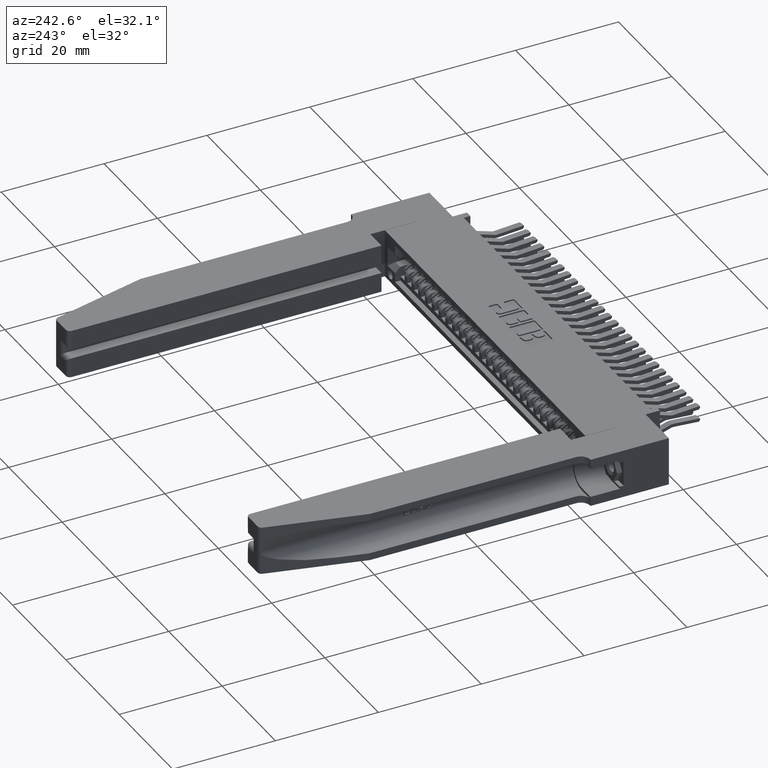
[diagram: clean part render]
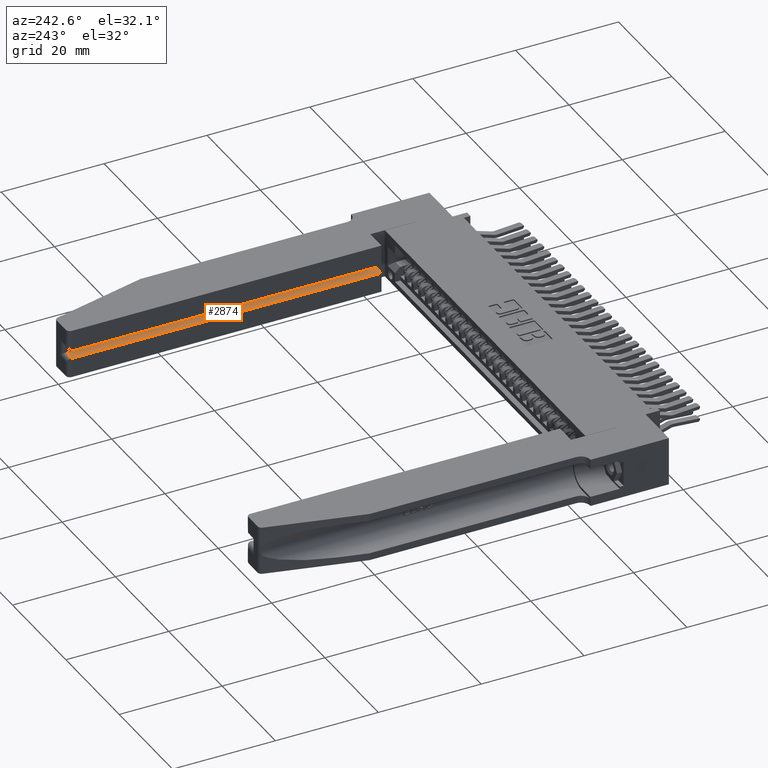
[diagram: same view with one face highlighted and labeled with its STEP entity id]
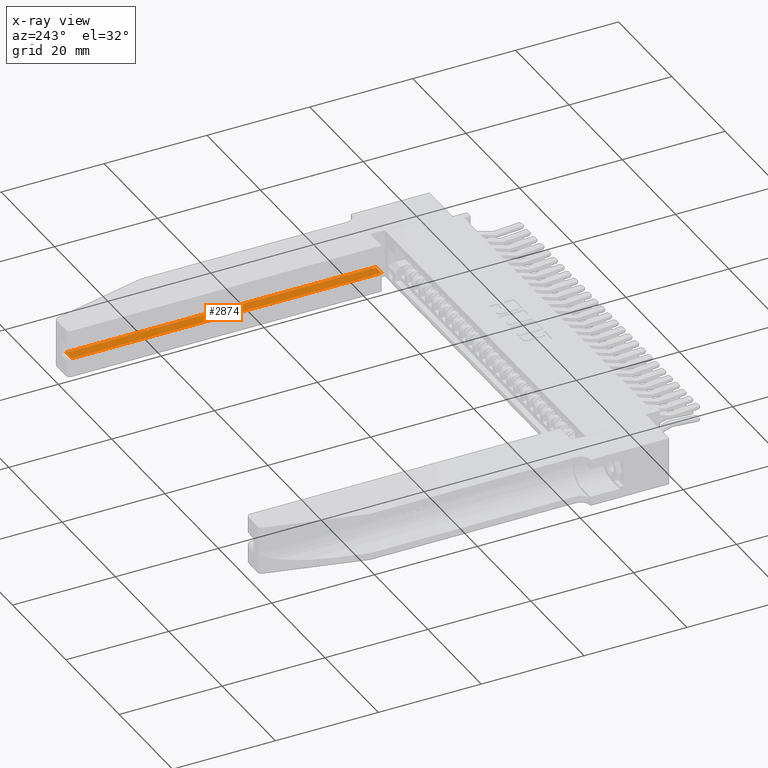
[diagram: x-ray of the same camera — body ghosted, the highlighted face saturated]
A machine part, auxiliary view. The second image highlights one B-rep face of the part: STEP entity #2874.
The next image is the same camera in x-ray: the body ghosted, the highlighted face saturated — about 0% of this face is hidden behind the body in this view.
In plain terms, the highlighted planar face has unit normal (-0, -0, -1).
Its self-contained STEP definition (entity closure, byte-faithful):
#2874 = ADVANCED_FACE ( 'NONE', ( #27825 ), #11401, .F. ) ;
#3910 = DIRECTION ( 'NONE',  ( 5.612000012723082900E-032, 1.000000000000000000, 5.916456789157588500E-031 ) ) ;
#6037 = VERTEX_POINT ( 'NONE', #13747 ) ;
#6263 = ORIENTED_EDGE ( 'NONE', *, *, #19585, .T. ) ;
#7759 = EDGE_LOOP ( 'NONE', ( #17178, #6263, #13450, #8389 ) ) ;
#7856 = AXIS2_PLACEMENT_3D ( 'NONE', #11435, #14809, #14745 ) ;
#8389 = ORIENTED_EDGE ( 'NONE', *, *, #15717, .T. ) ;
#9060 = LINE ( 'NONE', #13708, #14793 ) ;
#9679 = CARTESIAN_POINT ( 'NONE',  ( 0.3674999999999998300, 0.3499999999999999800, 0.2205000000000000000 ) ) ;
#10418 = LINE ( 'NONE', #28023, #22631 ) ;
#11401 = PLANE ( 'NONE',  #7856 ) ;
#11435 = CARTESIAN_POINT ( 'NONE',  ( 0.3674999999999998300, 0.2407754606326948900, 0.2204999999999999200 ) ) ;
#12927 = DIRECTION ( 'NONE',  ( 1.000000000000000000, 5.612000012723065300E-032, -4.114228906120879800E-016 ) ) ;
#13120 = VERTEX_POINT ( 'NONE', #23647 ) ;
#13450 = ORIENTED_EDGE ( 'NONE', *, *, #16270, .F. ) ;
#13708 = CARTESIAN_POINT ( 'NONE',  ( 0.4504999999999994600, 0.2407754606326948900, 0.2204999999999999700 ) ) ;
#13747 = CARTESIAN_POINT ( 'NONE',  ( 0.4504999999999994600, 2.719999999999999300, 0.2204999999999999700 ) ) ;
#14225 = EDGE_CURVE ( 'NONE', #17630, #13120, #18990, .T. ) ;
#14745 = DIRECTION ( 'NONE',  ( 1.000000000000000000, 5.612000012723065300E-032, -4.114228906120879800E-016 ) ) ;
#14793 = VECTOR ( 'NONE', #24498, 39.37007874015748100 ) ;
#14809 = DIRECTION ( 'NONE',  ( 4.114228906120879800E-016, 5.916456789157588500E-031, 1.000000000000000000 ) ) ;
#15717 = EDGE_CURVE ( 'NONE', #16813, #17630, #22632, .T. ) ;
#16270 = EDGE_CURVE ( 'NONE', #16813, #6037, #9060, .T. ) ;
#16813 = VERTEX_POINT ( 'NONE', #17674 ) ;
#16863 = VECTOR ( 'NONE', #24340, 39.37007874015748100 ) ;
#16978 = CARTESIAN_POINT ( 'NONE',  ( 0.3674999999999998300, 0.2407754606326948900, 0.2204999999999999200 ) ) ;
#17178 = ORIENTED_EDGE ( 'NONE', *, *, #14225, .T. ) ;
#17630 = VERTEX_POINT ( 'NONE', #9679 ) ;
#17674 = CARTESIAN_POINT ( 'NONE',  ( 0.4504999999999994600, 0.3499999999999999800, 0.2204999999999999700 ) ) ;
#18990 = LINE ( 'NONE', #16978, #19282 ) ;
#19282 = VECTOR ( 'NONE', #3910, 39.37007874015748100 ) ;
#19585 = EDGE_CURVE ( 'NONE', #13120, #6037, #10418, .T. ) ;
#20018 = CARTESIAN_POINT ( 'NONE',  ( 0.3674999999999998300, 0.3499999999999999800, 0.2205000000000000000 ) ) ;
#22631 = VECTOR ( 'NONE', #12927, 39.37007874015748100 ) ;
#22632 = LINE ( 'NONE', #20018, #16863 ) ;
#23647 = CARTESIAN_POINT ( 'NONE',  ( 0.3674999999999998300, 2.719999999999999300, 0.2205000000000000000 ) ) ;
#24340 = DIRECTION ( 'NONE',  ( -1.000000000000000000, -5.612000012723065300E-032, 4.114228906120879800E-016 ) ) ;
#24498 = DIRECTION ( 'NONE',  ( 5.612000012723082900E-032, 1.000000000000000000, 5.916456789157588500E-031 ) ) ;
#27825 = FACE_OUTER_BOUND ( 'NONE', #7759, .T. ) ;
#28023 = CARTESIAN_POINT ( 'NONE',  ( 0.3674999999999998300, 2.719999999999999300, 0.2205000000000000000 ) ) ;